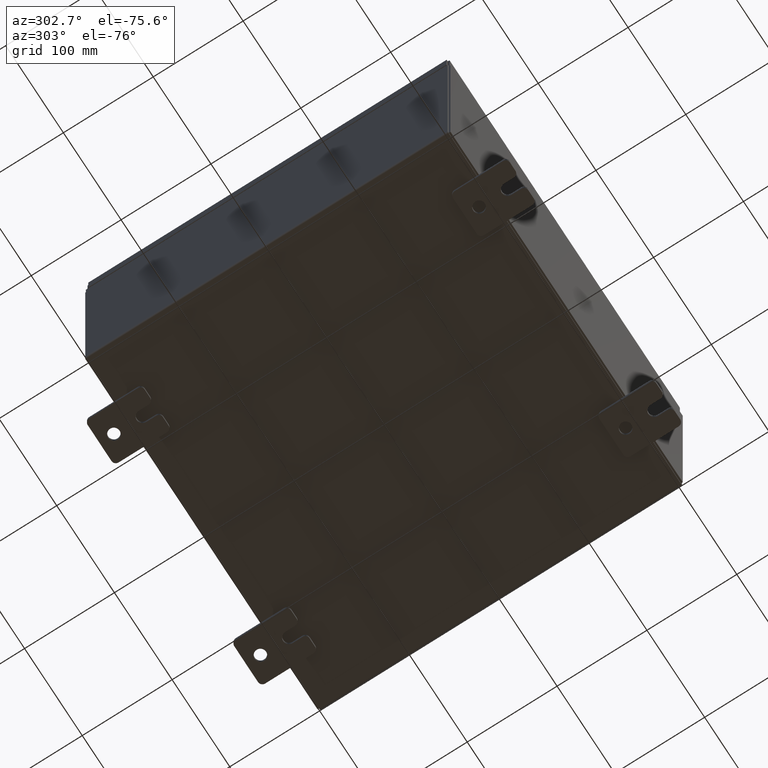
[diagram: clean part render]
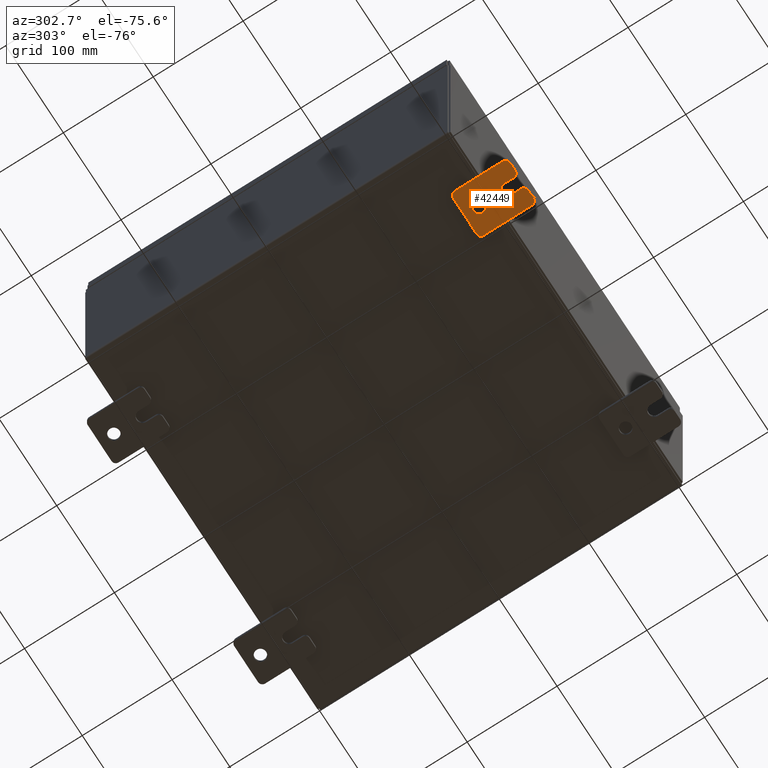
[diagram: same view with one face highlighted and labeled with its STEP entity id]
A machine part, auxiliary view. The second image highlights one B-rep face of the part: STEP entity #42449.
In plain terms, the highlighted planar face has unit normal (0, 0, 1).
Its self-contained STEP definition (entity closure, byte-faithful):
#550 = DIRECTION ( 'NONE',  ( -0.0000000000000000000, 0.0000000000000000000, -1.000000000000000000 ) ) ;
#946 = ORIENTED_EDGE ( 'NONE', *, *, #51743, .T. ) ;
#1085 = AXIS2_PLACEMENT_3D ( 'NONE', #50523, #21590, #55383 ) ;
#1160 = DIRECTION ( 'NONE',  ( -6.829619984160660000E-016, -1.000000000000000000, 0.0000000000000000000 ) ) ;
#1728 = EDGE_CURVE ( 'NONE', #42748, #6430, #53128, .T. ) ;
#1757 = VECTOR ( 'NONE', #18853, 39.37007874015748100 ) ;
#3600 = CIRCLE ( 'NONE', #52128, 0.1900000000000011100 ) ;
#3644 = LINE ( 'NONE', #55035, #40610 ) ;
#4017 = ORIENTED_EDGE ( 'NONE', *, *, #1728, .F. ) ;
#4321 = DIRECTION ( 'NONE',  ( 0.0000000000000000000, 1.639108796198553600E-015, 1.000000000000000000 ) ) ;
#4786 = ORIENTED_EDGE ( 'NONE', *, *, #35879, .F. ) ;
#5025 = EDGE_CURVE ( 'NONE', #47222, #19716, #45338, .T. ) ;
#5375 = CARTESIAN_POINT ( 'NONE',  ( -0.1879999999999997800, -1.060000000000003400, -0.4400000000000005000 ) ) ;
#6430 = VERTEX_POINT ( 'NONE', #43981 ) ;
#6485 = DIRECTION ( 'NONE',  ( -1.000000000000000000, -0.0000000000000000000, 0.0000000000000000000 ) ) ;
#6944 = DIRECTION ( 'NONE',  ( 0.0000000000000000000, -1.639108796198553600E-015, -1.000000000000000000 ) ) ;
#6979 = CARTESIAN_POINT ( 'NONE',  ( -0.1879999999999997800, 1.249999999999994700, -0.8100000000000092700 ) ) ;
#7277 = ORIENTED_EDGE ( 'NONE', *, *, #55677, .F. ) ;
#7312 = CARTESIAN_POINT ( 'NONE',  ( -0.1880000000000010000, 0.6249999999999992200, -7.703811342100550500E-020 ) ) ;
#7775 = CARTESIAN_POINT ( 'NONE',  ( -0.1880000000000005800, -1.250000000000003800, 0.2500000000000005000 ) ) ;
#8042 = EDGE_CURVE ( 'NONE', #39489, #36467, #3644, .T. ) ;
#10216 = DIRECTION ( 'NONE',  ( 0.0000000000000000000, 0.0000000000000000000, -1.000000000000000000 ) ) ;
#10311 = CARTESIAN_POINT ( 'NONE',  ( -0.1880000000000001900, -0.6249999999999992200, -0.2499999999999993900 ) ) ;
#10403 = LINE ( 'NONE', #7775, #34580 ) ;
#11127 = CIRCLE ( 'NONE', #14427, 0.2499999999999999200 ) ;
#11923 = CARTESIAN_POINT ( 'NONE',  ( -0.1880000000000001900, -0.6249999999999992200, 0.2500000000000005000 ) ) ;
#12131 = DIRECTION ( 'NONE',  ( 0.0000000000000000000, 0.0000000000000000000, -1.000000000000000000 ) ) ;
#12504 = ORIENTED_EDGE ( 'NONE', *, *, #16500, .F. ) ;
#13005 = DIRECTION ( 'NONE',  ( 6.556435184794182400E-016, 1.000000000000000000, 0.0000000000000000000 ) ) ;
#13224 = EDGE_CURVE ( 'NONE', #42126, #57715, #20307, .T. ) ;
#14371 = DIRECTION ( 'NONE',  ( -1.000000000000000000, -0.0000000000000000000, 0.0000000000000000000 ) ) ;
#14427 = AXIS2_PLACEMENT_3D ( 'NONE', #7312, #41045, #12131 ) ;
#14837 = EDGE_CURVE ( 'NONE', #59319, #6430, #3600, .T. ) ;
#15666 = AXIS2_PLACEMENT_3D ( 'NONE', #5375, #39124, #10216 ) ;
#16273 = DIRECTION ( 'NONE',  ( 0.0000000000000000000, -1.639108796198553600E-015, -1.000000000000000000 ) ) ;
#16500 = EDGE_CURVE ( 'NONE', #31100, #54321, #10403, .T. ) ;
#16513 = CARTESIAN_POINT ( 'NONE',  ( -0.1879999999999997800, -1.060000000000004100, -0.8100000000000050500 ) ) ;
#16902 = LINE ( 'NONE', #62342, #56943 ) ;
#16941 = CARTESIAN_POINT ( 'NONE',  ( -0.1879999999999997800, 1.059999999999996500, 0.9999999999999953400 ) ) ;
#18853 = DIRECTION ( 'NONE',  ( 0.0000000000000000000, -1.000000000000000000, 1.639108796198558100E-015 ) ) ;
#19143 = AXIS2_PLACEMENT_3D ( 'NONE', #16513, #50313, #21384 ) ;
#19320 = ORIENTED_EDGE ( 'NONE', *, *, #59871, .T. ) ;
#19716 = VERTEX_POINT ( 'NONE', #46383 ) ;
#19803 = DIRECTION ( 'NONE',  ( -6.556435184794182400E-016, -1.000000000000000000, -1.639108796198545600E-016 ) ) ;
#20307 = CIRCLE ( 'NONE', #1085, 0.1900000000000011100 ) ;
#20724 = EDGE_CURVE ( 'NONE', #42126, #34334, #16902, .T. ) ;
#20912 = DIRECTION ( 'NONE',  ( 0.0000000000000000000, 1.000000000000000000, -1.639108796198558100E-015 ) ) ;
#20938 = CARTESIAN_POINT ( 'NONE',  ( -0.1879999999999997800, -1.250000000000002200, 0.9999999999999992200 ) ) ;
#21384 = DIRECTION ( 'NONE',  ( 0.0000000000000000000, 0.0000000000000000000, -1.000000000000000000 ) ) ;
#21498 = FACE_OUTER_BOUND ( 'NONE', #25008, .T. ) ;
#21590 = DIRECTION ( 'NONE',  ( -1.000000000000000000, -0.0000000000000000000, 0.0000000000000000000 ) ) ;
#22455 = AXIS2_PLACEMENT_3D ( 'NONE', #24152, #57916, #29023 ) ;
#22867 = CIRCLE ( 'NONE', #26832, 0.1900000000000011400 ) ;
#22943 = EDGE_LOOP ( 'NONE', ( #42526, #29207 ) ) ;
#24152 = CARTESIAN_POINT ( 'NONE',  ( -0.1880000000000010000, 0.6249999999999992200, -7.703811342100550500E-020 ) ) ;
#25008 = EDGE_LOOP ( 'NONE', ( #7277, #56273, #4017, #946, #61162, #30910, #40259, #31531, #30536, #31200, #37737, #4786, #12504, #19320 ) ) ;
#25014 = CIRCLE ( 'NONE', #15666, 0.1900000000000011100 ) ;
#25523 = DIRECTION ( 'NONE',  ( -1.000000000000000000, -0.0000000000000000000, 0.0000000000000000000 ) ) ;
#26832 = AXIS2_PLACEMENT_3D ( 'NONE', #43290, #14371, #48161 ) ;
#27320 = CARTESIAN_POINT ( 'NONE',  ( -0.1879999999999997800, -1.060000000000004500, -1.000000000000006400 ) ) ;
#27547 = EDGE_CURVE ( 'NONE', #39489, #19716, #25014, .T. ) ;
#29018 = EDGE_CURVE ( 'NONE', #59086, #57715, #51382, .T. ) ;
#29023 = DIRECTION ( 'NONE',  ( 0.0000000000000000000, 0.0000000000000000000, -1.000000000000000000 ) ) ;
#29207 = ORIENTED_EDGE ( 'NONE', *, *, #54312, .T. ) ;
#29245 = CARTESIAN_POINT ( 'NONE',  ( -0.1879999999999997800, 0.0000000000000000000, 0.0000000000000000000 ) ) ;
#29460 = DIRECTION ( 'NONE',  ( 1.000000000000000000, 0.0000000000000000000, -0.0000000000000000000 ) ) ;
#30052 = DIRECTION ( 'NONE',  ( -1.000000000000000000, 6.523827964459549700E-016, 5.163192708025532000E-017 ) ) ;
#30536 = ORIENTED_EDGE ( 'NONE', *, *, #8042, .F. ) ;
#30910 = ORIENTED_EDGE ( 'NONE', *, *, #13224, .T. ) ;
#31100 = VERTEX_POINT ( 'NONE', #44880 ) ;
#31200 = ORIENTED_EDGE ( 'NONE', *, *, #27547, .T. ) ;
#31531 = ORIENTED_EDGE ( 'NONE', *, *, #50128, .T. ) ;
#33879 = CARTESIAN_POINT ( 'NONE',  ( -0.1879999999999997800, -1.250000000000002400, 0.8099999999999980500 ) ) ;
#34334 = VERTEX_POINT ( 'NONE', #53523 ) ;
#34580 = VECTOR ( 'NONE', #13005, 39.37007874015748100 ) ;
#34822 = VERTEX_POINT ( 'NONE', #57431 ) ;
#35402 = CARTESIAN_POINT ( 'NONE',  ( -0.1879999999999997800, 1.059999999999996300, 0.8099999999999938400 ) ) ;
#35567 = VECTOR ( 'NONE', #19803, 39.37007874015748100 ) ;
#35879 = EDGE_CURVE ( 'NONE', #54321, #47222, #54843, .T. ) ;
#36237 = CARTESIAN_POINT ( 'NONE',  ( -0.1879999999999997800, -1.250000000000004700, -0.4400000000000002200 ) ) ;
#36251 = CIRCLE ( 'NONE', #19143, 0.1900000000000011100 ) ;
#36467 = VERTEX_POINT ( 'NONE', #59433 ) ;
#36702 = AXIS2_PLACEMENT_3D ( 'NONE', #29245, #29460, #550 ) ;
#37470 = LINE ( 'NONE', #20938, #50316 ) ;
#37737 = ORIENTED_EDGE ( 'NONE', *, *, #5025, .F. ) ;
#38545 = VECTOR ( 'NONE', #20912, 39.37007874015748100 ) ;
#39124 = DIRECTION ( 'NONE',  ( -1.000000000000000000, -0.0000000000000000000, 0.0000000000000000000 ) ) ;
#39489 = VERTEX_POINT ( 'NONE', #36237 ) ;
#39671 = VERTEX_POINT ( 'NONE', #47594 ) ;
#39773 = EDGE_CURVE ( 'NONE', #46858, #34822, #51136, .T. ) ;
#40233 = DIRECTION ( 'NONE',  ( 0.0000000000000000000, 0.0000000000000000000, -1.000000000000000000 ) ) ;
#40259 = ORIENTED_EDGE ( 'NONE', *, *, #29018, .F. ) ;
#40610 = VECTOR ( 'NONE', #6944, 39.37007874015748100 ) ;
#41045 = DIRECTION ( 'NONE',  ( 1.000000000000000000, -0.0000000000000000000, -5.163192708025532000E-017 ) ) ;
#42126 = VERTEX_POINT ( 'NONE', #6979 ) ;
#42449 = ADVANCED_FACE ( 'NONE', ( #47188, #21498 ), #53524, .F. ) ;
#42526 = ORIENTED_EDGE ( 'NONE', *, *, #39773, .T. ) ;
#42748 = VERTEX_POINT ( 'NONE', #16941 ) ;
#43290 = CARTESIAN_POINT ( 'NONE',  ( -0.1879999999999997800, -1.060000000000002100, 0.4400000000000016700 ) ) ;
#43981 = CARTESIAN_POINT ( 'NONE',  ( -0.1879999999999997800, -1.060000000000001200, 0.9999999999999988900 ) ) ;
#44880 = CARTESIAN_POINT ( 'NONE',  ( -0.1880000000000004700, -1.060000000000002100, 0.2500000000000005000 ) ) ;
#45197 = CIRCLE ( 'NONE', #51129, 0.1900000000000011100 ) ;
#45338 = LINE ( 'NONE', #10311, #35567 ) ;
#46383 = CARTESIAN_POINT ( 'NONE',  ( -0.1880000000000004700, -1.060000000000003400, -0.2499999999999994400 ) ) ;
#46858 = VERTEX_POINT ( 'NONE', #51469 ) ;
#47188 = FACE_BOUND ( 'NONE', #22943, .T. ) ;
#47222 = VERTEX_POINT ( 'NONE', #48642 ) ;
#47594 = CARTESIAN_POINT ( 'NONE',  ( -0.1879999999999997800, -1.250000000000003100, 0.4400000000000020000 ) ) ;
#48161 = DIRECTION ( 'NONE',  ( 0.0000000000000000000, 0.0000000000000000000, -1.000000000000000000 ) ) ;
#48642 = CARTESIAN_POINT ( 'NONE',  ( -0.1880000000000001900, -0.6249999999999992200, -0.2499999999999998600 ) ) ;
#49922 = CARTESIAN_POINT ( 'NONE',  ( -0.1879999999999997800, 1.059999999999993400, -1.000000000000010000 ) ) ;
#50128 = EDGE_CURVE ( 'NONE', #59086, #36467, #36251, .T. ) ;
#50313 = DIRECTION ( 'NONE',  ( -1.000000000000000000, -0.0000000000000000000, 0.0000000000000000000 ) ) ;
#50316 = VECTOR ( 'NONE', #16273, 39.37007874015748100 ) ;
#50523 = CARTESIAN_POINT ( 'NONE',  ( -0.1879999999999997800, 1.059999999999993600, -0.8100000000000089400 ) ) ;
#51129 = AXIS2_PLACEMENT_3D ( 'NONE', #35402, #6485, #40233 ) ;
#51136 = CIRCLE ( 'NONE', #22455, 0.2499999999999999200 ) ;
#51382 = LINE ( 'NONE', #54696, #38545 ) ;
#51469 = CARTESIAN_POINT ( 'NONE',  ( -0.1880000000000010000, 0.6249999999999992200, -0.2499999999999999200 ) ) ;
#51743 = EDGE_CURVE ( 'NONE', #42748, #34334, #45197, .T. ) ;
#52128 = AXIS2_PLACEMENT_3D ( 'NONE', #54477, #25523, #59304 ) ;
#52635 = CARTESIAN_POINT ( 'NONE',  ( -0.1879999999999997800, 1.249999999999997600, 0.9999999999999951200 ) ) ;
#53128 = LINE ( 'NONE', #52635, #1757 ) ;
#53523 = CARTESIAN_POINT ( 'NONE',  ( -0.1879999999999997800, 1.249999999999997300, 0.8099999999999935000 ) ) ;
#53524 = PLANE ( 'NONE',  #36702 ) ;
#54312 = EDGE_CURVE ( 'NONE', #34822, #46858, #11127, .T. ) ;
#54321 = VERTEX_POINT ( 'NONE', #11923 ) ;
#54477 = CARTESIAN_POINT ( 'NONE',  ( -0.1879999999999997800, -1.060000000000001600, 0.8099999999999978300 ) ) ;
#54696 = CARTESIAN_POINT ( 'NONE',  ( -0.1879999999999997800, -1.250000000000005600, -1.000000000000006200 ) ) ;
#54843 = CIRCLE ( 'NONE', #61739, 0.2499999999999999200 ) ;
#55035 = CARTESIAN_POINT ( 'NONE',  ( -0.1879999999999997800, -1.250000000000002200, 0.9999999999999992200 ) ) ;
#55383 = DIRECTION ( 'NONE',  ( 0.0000000000000000000, 0.0000000000000000000, -1.000000000000000000 ) ) ;
#55677 = EDGE_CURVE ( 'NONE', #59319, #39671, #37470, .T. ) ;
#56273 = ORIENTED_EDGE ( 'NONE', *, *, #14837, .T. ) ;
#56943 = VECTOR ( 'NONE', #4321, 39.37007874015748100 ) ;
#57431 = CARTESIAN_POINT ( 'NONE',  ( -0.1880000000000010000, 0.6249999999999992200, 0.2499999999999999200 ) ) ;
#57715 = VERTEX_POINT ( 'NONE', #49922 ) ;
#57916 = DIRECTION ( 'NONE',  ( 1.000000000000000000, -0.0000000000000000000, -5.163192708025532000E-017 ) ) ;
#58955 = CARTESIAN_POINT ( 'NONE',  ( -0.1880000000000001900, -0.6249999999999992200, 6.829619984160658000E-017 ) ) ;
#59086 = VERTEX_POINT ( 'NONE', #27320 ) ;
#59304 = DIRECTION ( 'NONE',  ( 0.0000000000000000000, 7.189073667537492800E-016, -1.000000000000000000 ) ) ;
#59319 = VERTEX_POINT ( 'NONE', #33879 ) ;
#59433 = CARTESIAN_POINT ( 'NONE',  ( -0.1879999999999997800, -1.250000000000005300, -0.8100000000000047200 ) ) ;
#59871 = EDGE_CURVE ( 'NONE', #31100, #39671, #22867, .T. ) ;
#61162 = ORIENTED_EDGE ( 'NONE', *, *, #20724, .F. ) ;
#61739 = AXIS2_PLACEMENT_3D ( 'NONE', #58955, #30052, #1160 ) ;
#62342 = CARTESIAN_POINT ( 'NONE',  ( -0.1879999999999997800, 1.249999999999994200, -1.000000000000010400 ) ) ;